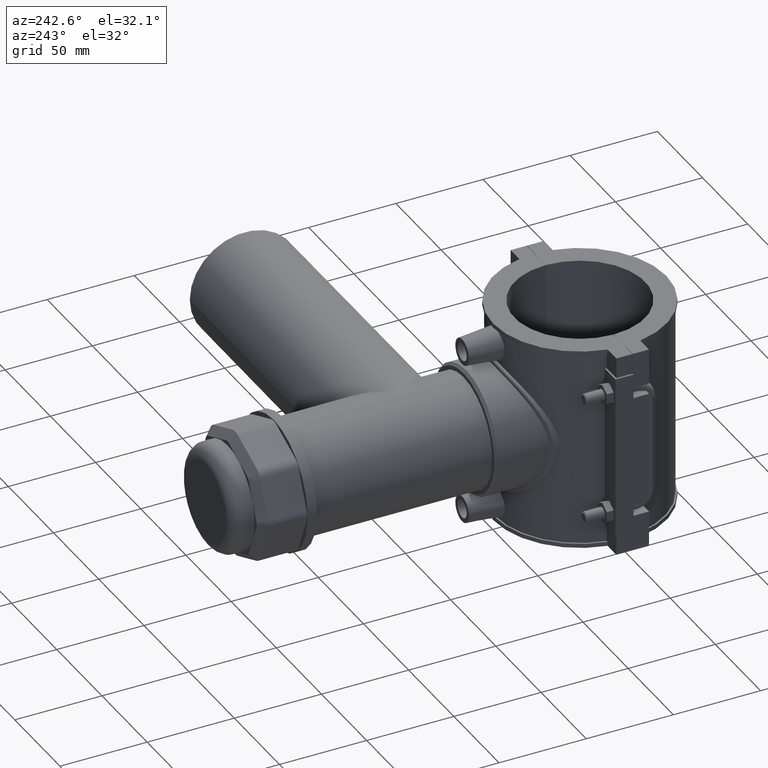
[diagram: clean part render]
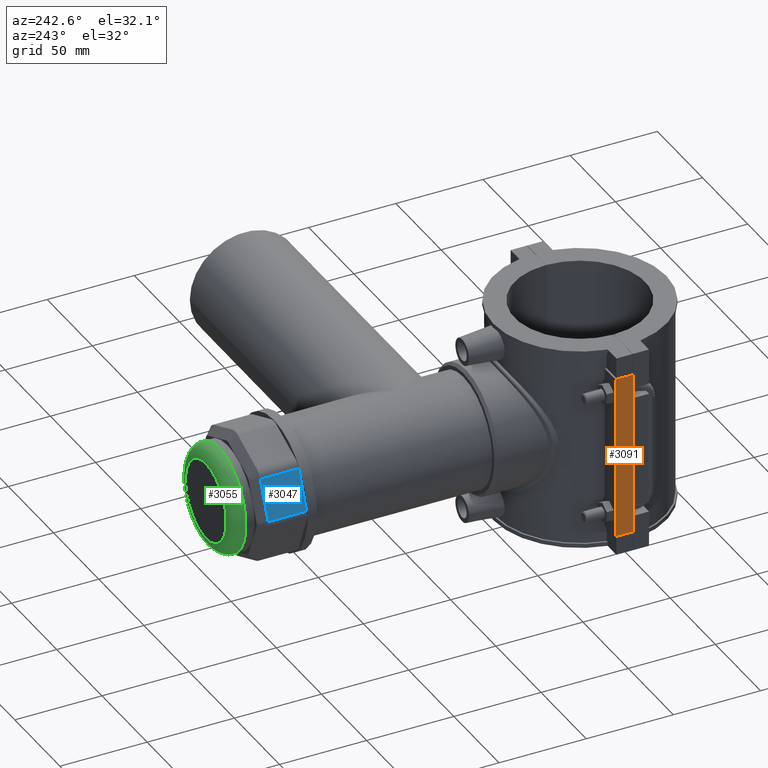
[diagram: same view with three faces highlighted in distinct colors, each labeled with its STEP entity id]
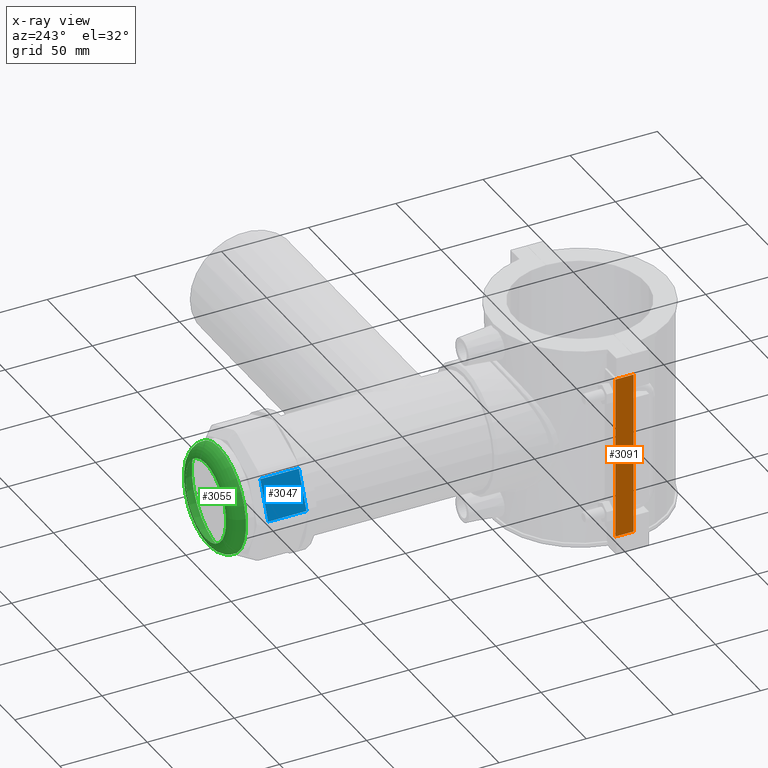
[diagram: x-ray of the same camera — body ghosted, the three highlighted faces saturated]
A machine part, auxiliary view with three faces highlighted in distinct colors.
The next image is the same camera in x-ray (body ghosted, the three faces saturated) — at least one of them is partly hidden behind the body in this view.
Their STEP definitions:

[orange] entity #3091 — the highlighted planar face has unit normal (1, 0, 0).
#147=LINE('',#5535,#426);
#150=LINE('',#5541,#429);
#153=LINE('',#5546,#432);
#166=LINE('',#5602,#445);
#426=VECTOR('',#3853,10.3250000000001);
#429=VECTOR('',#3858,10.3250000000001);
#432=VECTOR('',#3863,94.4);
#445=VECTOR('',#3882,94.4);
#822=FACE_OUTER_BOUND('',#1032,.T.);
#1032=EDGE_LOOP('',(#2361,#2362,#2363,#2364));
#1428=VERTEX_POINT('',#5532);
#1429=VERTEX_POINT('',#5534);
#1430=VERTEX_POINT('',#5538);
#1431=VERTEX_POINT('',#5540);
#1769=EDGE_CURVE('',#1429,#1428,#147,.T.);
#1772=EDGE_CURVE('',#1431,#1430,#150,.T.);
#1775=EDGE_CURVE('',#1429,#1430,#153,.T.);
#1794=EDGE_CURVE('',#1428,#1431,#166,.T.);
#2361=ORIENTED_EDGE('',*,*,#1775,.F.);
#2362=ORIENTED_EDGE('',*,*,#1769,.T.);
#2363=ORIENTED_EDGE('',*,*,#1794,.T.);
#2364=ORIENTED_EDGE('',*,*,#1772,.T.);
#2945=PLANE('',#3336);
#3091=ADVANCED_FACE('',(#822),#2945,.F.);
#3336=AXIS2_PLACEMENT_3D('',#5601,#3880,#3881);
#3853=DIRECTION('',(0.,-1.,0.));
#3858=DIRECTION('',(0.,1.,0.));
#3863=DIRECTION('',(0.,0.,1.));
#3880=DIRECTION('center_axis',(1.,0.,0.));
#3881=DIRECTION('ref_axis',(0.,1.,0.));
#3882=DIRECTION('',(0.,0.,1.));
#5532=CARTESIAN_POINT('',(-59.5,0.0500000000000078,-47.2));
#5534=CARTESIAN_POINT('',(-59.5,10.3750000000001,-47.2));
#5535=CARTESIAN_POINT('',(-59.5,0.0500000000000078,-47.2));
#5538=CARTESIAN_POINT('',(-59.5,10.3750000000001,47.2));
#5540=CARTESIAN_POINT('',(-59.5,0.0500000000000078,47.2));
#5541=CARTESIAN_POINT('',(-59.5,0.0500000000000078,47.2));
#5546=CARTESIAN_POINT('',(-59.5,10.3750000000001,0.));
#5601=CARTESIAN_POINT('Origin',(-59.5,0.0500000000000081,0.));
#5602=CARTESIAN_POINT('',(-59.5,0.0500000000000081,0.));

[blue] entity #3047 — the highlighted planar face has unit normal (-0.9239, -0, 0.3827).
#66=LINE('',#4743,#345);
#76=LINE('',#4772,#355);
#77=LINE('',#4776,#356);
#78=LINE('',#4777,#357);
#345=VECTOR('',#3596,22.4880539917853);
#355=VECTOR('',#3628,22.0499999999999);
#356=VECTOR('',#3633,22.0499999999999);
#357=VECTOR('',#3634,22.4880539917853);
#778=FACE_OUTER_BOUND('',#969,.T.);
#969=EDGE_LOOP('',(#2109,#2110,#2111,#2112));
#1324=VERTEX_POINT('',#4735);
#1326=VERTEX_POINT('',#4741);
#1334=VERTEX_POINT('',#4771);
#1335=VERTEX_POINT('',#4775);
#1632=EDGE_CURVE('',#1326,#1324,#66,.T.);
#1647=EDGE_CURVE('',#1324,#1334,#76,.T.);
#1649=EDGE_CURVE('',#1335,#1326,#77,.T.);
#1650=EDGE_CURVE('',#1334,#1335,#78,.T.);
#2109=ORIENTED_EDGE('',*,*,#1632,.F.);
#2110=ORIENTED_EDGE('',*,*,#1649,.F.);
#2111=ORIENTED_EDGE('',*,*,#1650,.F.);
#2112=ORIENTED_EDGE('',*,*,#1647,.F.);
#2922=PLANE('',#3256);
#3047=ADVANCED_FACE('',(#778),#2922,.T.);
#3256=AXIS2_PLACEMENT_3D('',#4774,#3631,#3632);
#3596=DIRECTION('',(0.38268343236509,-2.82856528071925E-16,0.923879532511287));
#3628=DIRECTION('',(0.,-1.,-3.34530478229802E-16));
#3631=DIRECTION('center_axis',(-0.923879532511287,-1.28019271639716E-16,
0.38268343236509));
#3632=DIRECTION('ref_axis',(-0.38268343236509,0.,-0.923879532511287));
#3633=DIRECTION('',(-2.27753888853756E-32,1.,3.34530478229802E-16));
#3634=DIRECTION('',(-0.38268343236509,2.82856528071925E-16,-0.923879532511287));
#4735=CARTESIAN_POINT('',(-27.7053493028538,197.61,23.6463785517574));
#4741=CARTESIAN_POINT('',(-36.3111549916417,197.61,2.87012574273822));
#4743=CARTESIAN_POINT('',(-23.9590773619726,197.61,32.6906790797708));
#4771=CARTESIAN_POINT('',(-27.7053493028538,175.56,23.6463785517574));
#4772=CARTESIAN_POINT('',(-27.7053493028538,202.11,23.6463785517574));
#4774=CARTESIAN_POINT('Origin',(-26.5165042944955,202.11,26.5165042944956));
#4775=CARTESIAN_POINT('',(-36.3111549916417,175.56,2.87012574273821));
#4776=CARTESIAN_POINT('',(-36.3111549916417,202.11,2.87012574273822));
#4777=CARTESIAN_POINT('',(-23.5613297975551,175.56,33.6509266441882));

[green] entity #3055 — the highlighted toroidal blend (fillet) surface has major radius 22.5 mm and minor (blend) radius 7.5 mm.
#20=TOROIDAL_SURFACE('',#3269,22.5,7.5);
#607=FACE_BOUND('',#981,.T.);
#786=FACE_OUTER_BOUND('',#980,.T.);
#980=EDGE_LOOP('',(#2150));
#981=EDGE_LOOP('',(#2151));
#1209=CIRCLE('',#3270,30.);
#1210=CIRCLE('',#3271,22.5);
#1343=VERTEX_POINT('',#4804);
#1344=VERTEX_POINT('',#4806);
#1662=EDGE_CURVE('',#1343,#1343,#1209,.T.);
#1663=EDGE_CURVE('',#1344,#1344,#1210,.T.);
#2150=ORIENTED_EDGE('',*,*,#1662,.T.);
#2151=ORIENTED_EDGE('',*,*,#1663,.T.);
#3055=ADVANCED_FACE('',(#786,#607),#20,.T.);
#3269=AXIS2_PLACEMENT_3D('',#4803,#3665,#3666);
#3270=AXIS2_PLACEMENT_3D('',#4805,#3667,#3668);
#3271=AXIS2_PLACEMENT_3D('',#4807,#3669,#3670);
#3665=DIRECTION('center_axis',(0.,1.,3.06161699786838E-16));
#3666=DIRECTION('ref_axis',(0.,0.,1.));
#3667=DIRECTION('center_axis',(0.,1.,3.06161699786838E-16));
#3668=DIRECTION('ref_axis',(6.12323399573676E-17,2.96059473233375E-16,-1.));
#3669=DIRECTION('center_axis',(0.,-1.,-3.06161699786838E-16));
#3670=DIRECTION('ref_axis',(6.12323399573676E-17,3.06161699786838E-16,-1.));
#4803=CARTESIAN_POINT('Origin',(0.,207.,5.18944081138691E-14));
#4804=CARTESIAN_POINT('',(1.83697019872103E-15,207.,30.0000000000001));
#4805=CARTESIAN_POINT('Origin',(0.,207.,5.18944081138691E-14));
#4806=CARTESIAN_POINT('',(-4.13318294712232E-15,214.5,22.5000000000001));
#4807=CARTESIAN_POINT('Origin',(0.,214.5,5.41906208622704E-14));